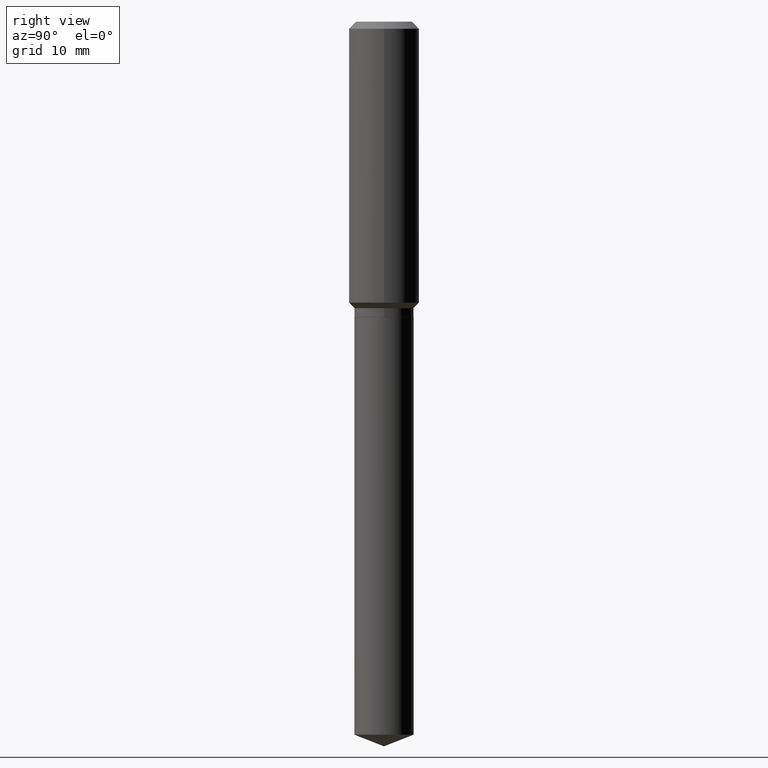
[diagram: clean part render]
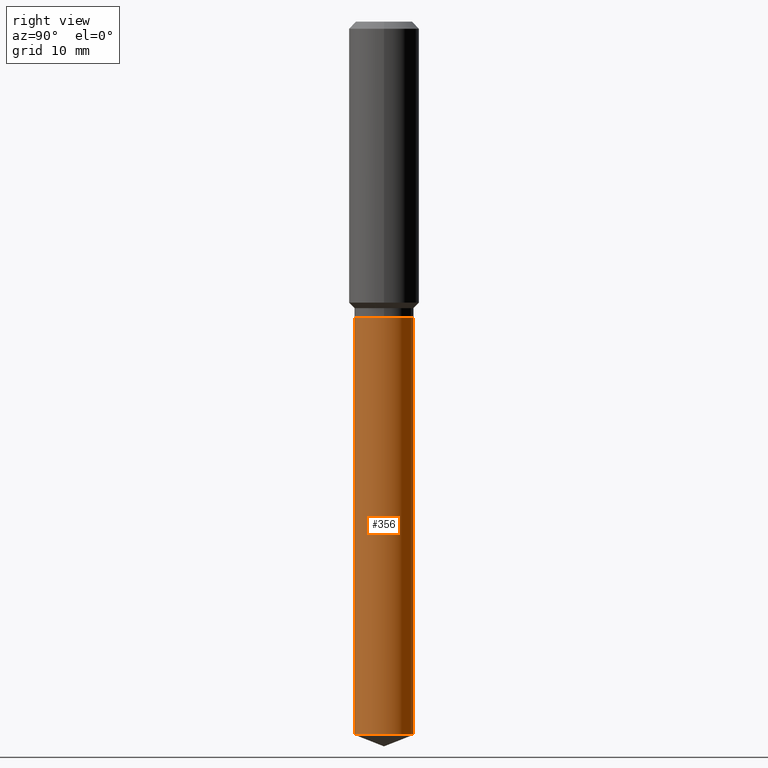
[diagram: same view with one face highlighted and labeled with its STEP entity id]
A machine part, right view. The second image highlights one B-rep face of the part: STEP entity #356.
In plain terms, the highlighted cylindrical surface (edge-blend (fillet) strip) has radius 4.2164 mm, axis along (-0, 0, 1).
Its self-contained STEP definition (entity closure, byte-faithful):
#16 = FACE_OUTER_BOUND ( 'NONE', #238, .T. ) ;
#50 = DIRECTION ( 'NONE',  ( -2.445540233102860963E-29, 3.491379051431596489E-15, 1.000000000000000000 ) ) ;
#54 = CARTESIAN_POINT ( 'NONE',  ( 1.179500941361863992E-15, 0.1659999999999860754, -3.989610861047919954 ) ) ;
#63 = EDGE_CURVE ( 'NONE', #308, #123, #443, .T. ) ;
#71 = ORIENTED_EDGE ( 'NONE', *, *, #292, .F. ) ;
#74 = CARTESIAN_POINT ( 'NONE',  ( 1.179500941361806799E-15, 0.1659999999999942355, -1.653400000000000203 ) ) ;
#75 = DIRECTION ( 'NONE',  ( -2.445540233102860683E-29, 3.491379051431596884E-15, 1.000000000000000000 ) ) ;
#103 = EDGE_CURVE ( 'NONE', #396, #171, #414, .T. ) ;
#111 = DIRECTION ( 'NONE',  ( -2.445540233102860963E-29, 3.491379051431596489E-15, 1.000000000000000000 ) ) ;
#123 = VERTEX_POINT ( 'NONE', #264 ) ;
#125 = ORIENTED_EDGE ( 'NONE', *, *, #63, .F. ) ;
#150 = AXIS2_PLACEMENT_3D ( 'NONE', #158, #111, #304 ) ;
#154 = CARTESIAN_POINT ( 'NONE',  ( 1.179500941361864189E-15, 0.1659999999999942355, -1.653400000000000203 ) ) ;
#158 = CARTESIAN_POINT ( 'NONE',  ( 9.756635777851070413E-29, -1.392941290563293579E-14, -3.989610861047919510 ) ) ;
#166 = CARTESIAN_POINT ( 'NONE',  ( 4.043338124146503856E-29, -5.772815245643255193E-15, -1.653399999999999537 ) ) ;
#169 = ORIENTED_EDGE ( 'NONE', *, *, #103, .T. ) ;
#171 = VERTEX_POINT ( 'NONE', #154 ) ;
#197 = DIRECTION ( 'NONE',  ( -2.445540233102860963E-29, 3.491379051431596489E-15, 1.000000000000000000 ) ) ;
#205 = CARTESIAN_POINT ( 'NONE',  ( -1.159171804495822755E-15, -0.1660000000000139420, -3.989610861047919066 ) ) ;
#238 = EDGE_LOOP ( 'NONE', ( #327, #169, #71, #125 ) ) ;
#240 = EDGE_CURVE ( 'NONE', #308, #396, #280, .T. ) ;
#262 = VECTOR ( 'NONE', #484, 39.37007874015748143 ) ;
#264 = CARTESIAN_POINT ( 'NONE',  ( -1.159171804495879750E-15, -0.1660000000000057818, -1.653399999999999093 ) ) ;
#271 = CIRCLE ( 'NONE', #383, 0.1660000000000000087 ) ;
#280 = CIRCLE ( 'NONE', #150, 0.1660000000000000087 ) ;
#292 = EDGE_CURVE ( 'NONE', #123, #171, #271, .T. ) ;
#302 = VECTOR ( 'NONE', #75, 39.37007874015748143 ) ;
#303 = AXIS2_PLACEMENT_3D ( 'NONE', #166, #50, #471 ) ;
#304 = DIRECTION ( 'NONE',  ( -6.982962677686266711E-15, -1.000000000000000000, 3.291383124896702687E-15 ) ) ;
#308 = VERTEX_POINT ( 'NONE', #205 ) ;
#327 = ORIENTED_EDGE ( 'NONE', *, *, #240, .T. ) ;
#356 = ADVANCED_FACE ( 'NONE', ( #16 ), #425, .T. ) ;
#371 = CARTESIAN_POINT ( 'NONE',  ( -1.159171804495879750E-15, -0.1660000000000057818, -1.653399999999999093 ) ) ;
#383 = AXIS2_PLACEMENT_3D ( 'NONE', #467, #197, #473 ) ;
#396 = VERTEX_POINT ( 'NONE', #54 ) ;
#414 = LINE ( 'NONE', #74, #302 ) ;
#425 = CYLINDRICAL_SURFACE ( 'NONE', #303, 0.1660000000000000087 ) ;
#443 = LINE ( 'NONE', #371, #262 ) ;
#467 = CARTESIAN_POINT ( 'NONE',  ( 4.043338124146503856E-29, -5.772815245643255193E-15, -1.653399999999999537 ) ) ;
#471 = DIRECTION ( 'NONE',  ( -6.982962677686266711E-15, -1.000000000000000000, 3.291383124896702687E-15 ) ) ;
#473 = DIRECTION ( 'NONE',  ( -6.982962677686266711E-15, -1.000000000000000000, 3.291383124896702687E-15 ) ) ;
#484 = DIRECTION ( 'NONE',  ( -2.445540233102860683E-29, 3.491379051431596884E-15, 1.000000000000000000 ) ) ;